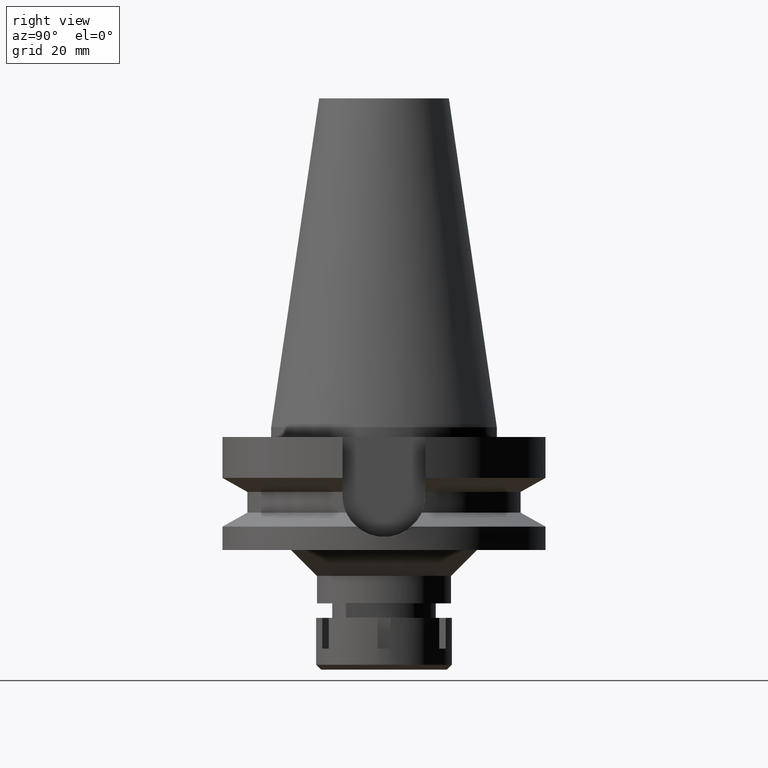
[diagram: clean part render]
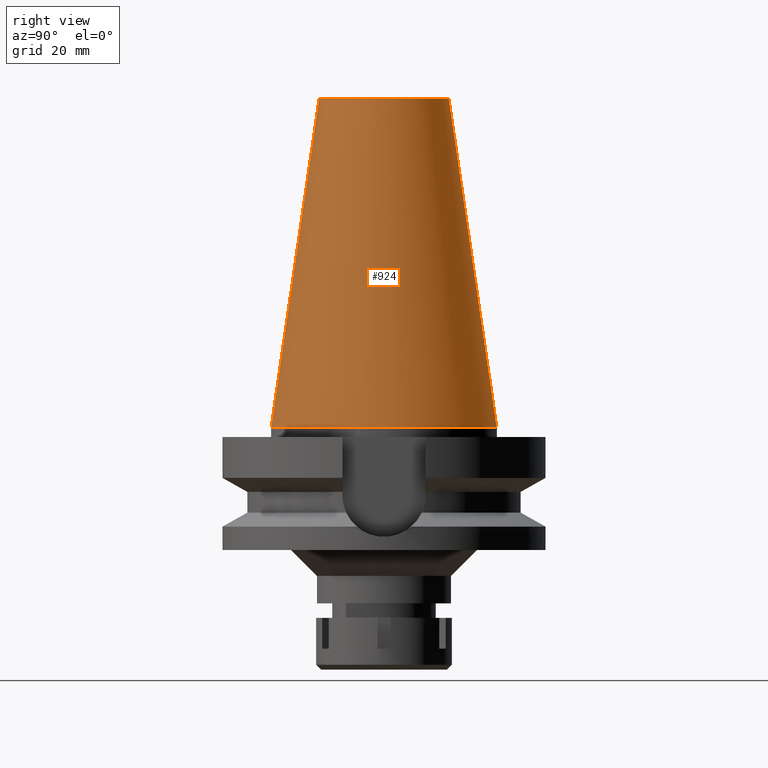
[diagram: same view with one face highlighted and labeled with its STEP entity id]
A machine part, right view. The second image highlights one B-rep face of the part: STEP entity #924.
In plain terms, the highlighted conical surface has half-angle 8.297 deg.
Its self-contained STEP definition (entity closure, byte-faithful):
#31 = VERTEX_POINT ( 'NONE', #53 ) ;
#53 = CARTESIAN_POINT ( 'NONE',  ( 0.0000000000000000000, 34.92499999999999716, 4.121147867409000121E-13 ) ) ;
#214 = VERTEX_POINT ( 'NONE', #2361 ) ;
#504 = AXIS2_PLACEMENT_3D ( 'NONE', #2799, #804, #3325 ) ;
#509 = VECTOR ( 'NONE', #1103, 1000.000000000000114 ) ;
#668 = AXIS2_PLACEMENT_3D ( 'NONE', #2496, #3373, #824 ) ;
#804 = DIRECTION ( 'NONE',  ( 0.0000000000000000000, 0.0000000000000000000, -1.000000000000000000 ) ) ;
#824 = DIRECTION ( 'NONE',  ( 0.0000000000000000000, -1.000000000000000000, 0.0000000000000000000 ) ) ;
#924 = ADVANCED_FACE ( 'NONE', ( #1387 ), #1729, .T. ) ;
#1103 = DIRECTION ( 'NONE',  ( 0.0000000000000000000, 0.1443043893538948075, -0.9895333461855641000 ) ) ;
#1250 = VERTEX_POINT ( 'NONE', #3222 ) ;
#1377 = EDGE_CURVE ( 'NONE', #31, #2605, #2600, .T. ) ;
#1387 = FACE_OUTER_BOUND ( 'NONE', #3616, .T. ) ;
#1509 = ORIENTED_EDGE ( 'NONE', *, *, #1684, .T. ) ;
#1684 = EDGE_CURVE ( 'NONE', #214, #1250, #2089, .T. ) ;
#1726 = CARTESIAN_POINT ( 'NONE',  ( 0.0000000000000000000, -20.07942971896000017, 101.7999999999999972 ) ) ;
#1729 = CONICAL_SURFACE ( 'NONE', #668, 27.50221485948000222, 0.1448099680379422438 ) ;
#1850 = DIRECTION ( 'NONE',  ( 0.0000000000000000000, 0.0000000000000000000, -1.000000000000000000 ) ) ;
#1901 = CARTESIAN_POINT ( 'NONE',  ( 0.0000000000000000000, 1.847992019912999597E-14, 101.7999999999999972 ) ) ;
#2089 = CIRCLE ( 'NONE', #3583, 20.07942971896000017 ) ;
#2146 = DIRECTION ( 'NONE',  ( 0.0000000000000000000, 1.000000000000000000, 0.0000000000000000000 ) ) ;
#2268 = ORIENTED_EDGE ( 'NONE', *, *, #1377, .F. ) ;
#2308 = LINE ( 'NONE', #1726, #2889 ) ;
#2361 = CARTESIAN_POINT ( 'NONE',  ( 0.0000000000000000000, 20.07942971896000017, 101.7999999999999972 ) ) ;
#2490 = CARTESIAN_POINT ( 'NONE',  ( 0.0000000000000000000, 20.07942971896000017, 101.7999999999999972 ) ) ;
#2496 = CARTESIAN_POINT ( 'NONE',  ( 0.0000000000000000000, 1.847992019912999597E-14, 50.89999999999999858 ) ) ;
#2548 = EDGE_CURVE ( 'NONE', #214, #31, #3035, .T. ) ;
#2600 = CIRCLE ( 'NONE', #504, 34.92499999999999716 ) ;
#2605 = VERTEX_POINT ( 'NONE', #3388 ) ;
#2700 = EDGE_CURVE ( 'NONE', #1250, #2605, #2308, .T. ) ;
#2799 = CARTESIAN_POINT ( 'NONE',  ( 0.0000000000000000000, 1.847992019912999597E-14, 3.979039320256999774E-13 ) ) ;
#2817 = DIRECTION ( 'NONE',  ( 0.0000000000000000000, -0.1443043893538948075, -0.9895333461855641000 ) ) ;
#2889 = VECTOR ( 'NONE', #2817, 1000.000000000000114 ) ;
#3035 = LINE ( 'NONE', #2490, #509 ) ;
#3116 = ORIENTED_EDGE ( 'NONE', *, *, #2700, .T. ) ;
#3222 = CARTESIAN_POINT ( 'NONE',  ( 0.0000000000000000000, -20.07942971896000017, 101.7999999999999972 ) ) ;
#3325 = DIRECTION ( 'NONE',  ( 0.0000000000000000000, 1.000000000000000000, 0.0000000000000000000 ) ) ;
#3331 = ORIENTED_EDGE ( 'NONE', *, *, #2548, .F. ) ;
#3373 = DIRECTION ( 'NONE',  ( 0.0000000000000000000, 0.0000000000000000000, -1.000000000000000000 ) ) ;
#3388 = CARTESIAN_POINT ( 'NONE',  ( 0.0000000000000000000, -34.92499999999999716, 4.121147867409000121E-13 ) ) ;
#3583 = AXIS2_PLACEMENT_3D ( 'NONE', #1901, #1850, #2146 ) ;
#3616 = EDGE_LOOP ( 'NONE', ( #1509, #3116, #2268, #3331 ) ) ;